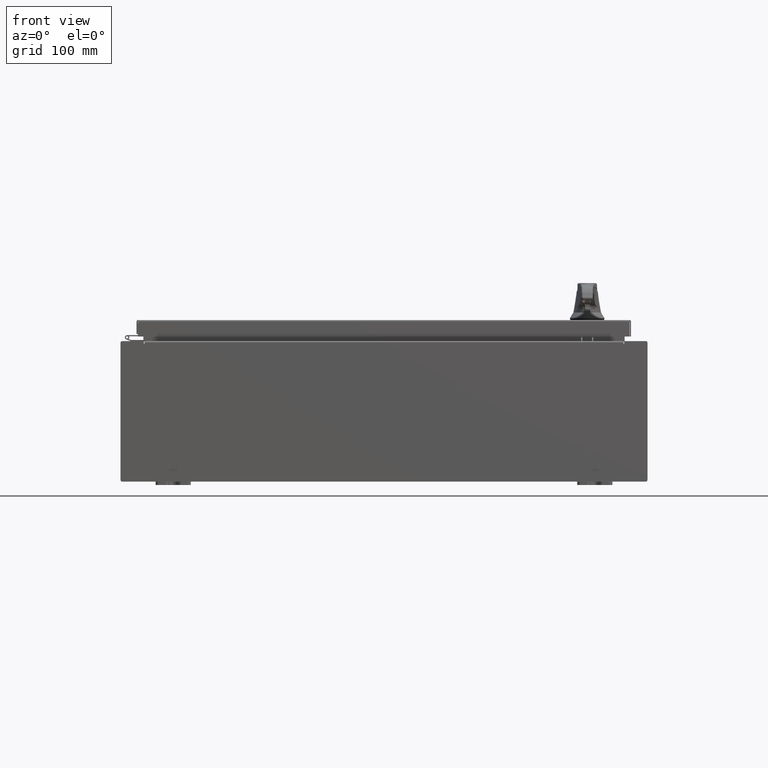
[diagram: clean part render]
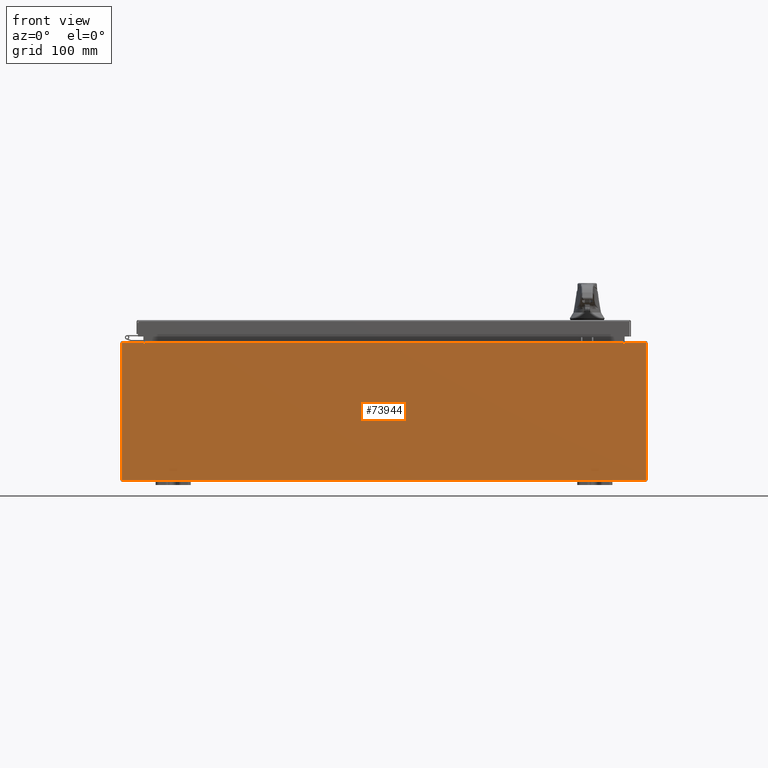
[diagram: same view with one face highlighted and labeled with its STEP entity id]
A machine part, front view. The second image highlights one B-rep face of the part: STEP entity #73944.
In plain terms, the highlighted planar face has unit normal (-0, 1, -0).
Its self-contained STEP definition (entity closure, byte-faithful):
#477 = EDGE_LOOP ( 'NONE', ( #78042, #6673, #98486, #2256, #41566, #60669, #43273, #74959, #100470, #58047, #103509, #43449 ) ) ;
#1920 = LINE ( 'NONE', #87000, #4705 ) ;
#2256 = ORIENTED_EDGE ( 'NONE', *, *, #9070, .T. ) ;
#3968 = AXIS2_PLACEMENT_3D ( 'NONE', #89749, #37236, #98579 ) ;
#4540 = DIRECTION ( 'NONE',  ( 0.0000000000000000000, 0.0000000000000000000, 1.000000000000000000 ) ) ;
#4705 = VECTOR ( 'NONE', #34547, 39.37007874015748100 ) ;
#5042 = CARTESIAN_POINT ( 'NONE',  ( 13.63720000000000400, 0.0000000000000000000, 0.0000000000000000000 ) ) ;
#5684 = EDGE_CURVE ( 'NONE', #36185, #93398, #57331, .T. ) ;
#6132 = EDGE_CURVE ( 'NONE', #82861, #41895, #61418, .T. ) ;
#6527 = CARTESIAN_POINT ( 'NONE',  ( 14.92530000000000200, 0.0000000000000000000, -3.925299999999999600 ) ) ;
#6673 = ORIENTED_EDGE ( 'NONE', *, *, #37110, .F. ) ;
#7060 = CARTESIAN_POINT ( 'NONE',  ( -13.63719999999999600, -0.0000000000000000000, 0.0000000000000000000 ) ) ;
#9070 = EDGE_CURVE ( 'NONE', #45781, #93398, #111776, .T. ) ;
#9541 = VERTEX_POINT ( 'NONE', #9658 ) ;
#9658 = CARTESIAN_POINT ( 'NONE',  ( 13.67455000000000200, 0.0000000000000000000, 3.874949999999999700 ) ) ;
#10154 = DIRECTION ( 'NONE',  ( 1.000000000000000000, 0.0000000000000000000, 0.0000000000000000000 ) ) ;
#13900 = DIRECTION ( 'NONE',  ( 0.0000000000000000000, 0.0000000000000000000, -1.000000000000000000 ) ) ;
#18378 = CARTESIAN_POINT ( 'NONE',  ( -14.92529999999999800, 0.0000000000000000000, -3.925299999999999600 ) ) ;
#18624 = LINE ( 'NONE', #104613, #62511 ) ;
#21254 = VECTOR ( 'NONE', #10154, 39.37007874015748100 ) ;
#21978 = EDGE_CURVE ( 'NONE', #41895, #51693, #56010, .T. ) ;
#24092 = EDGE_CURVE ( 'NONE', #45781, #93572, #60465, .T. ) ;
#24902 = VERTEX_POINT ( 'NONE', #36272 ) ;
#24967 = CARTESIAN_POINT ( 'NONE',  ( 0.0000000000000000000, 0.0000000000000000000, 0.0000000000000000000 ) ) ;
#30324 = VECTOR ( 'NONE', #111103, 39.37007874015748100 ) ;
#33800 = DIRECTION ( 'NONE',  ( 0.0000000000000000000, -0.0000000000000000000, -1.000000000000000000 ) ) ;
#34050 = VECTOR ( 'NONE', #4540, 39.37007874015748100 ) ;
#34547 = DIRECTION ( 'NONE',  ( -4.340572780400004900E-014, 0.0000000000000000000, -1.000000000000000000 ) ) ;
#35004 = CARTESIAN_POINT ( 'NONE',  ( -13.63719999999999600, -0.0000000000000000000, 3.874949999999999700 ) ) ;
#35296 = AXIS2_PLACEMENT_3D ( 'NONE', #24967, #86268, #33800 ) ;
#36185 = VERTEX_POINT ( 'NONE', #110373 ) ;
#36272 = CARTESIAN_POINT ( 'NONE',  ( -14.92529999999999800, 0.0000000000000000000, 3.925299999999999600 ) ) ;
#37110 = EDGE_CURVE ( 'NONE', #93572, #98308, #100562, .T. ) ;
#37236 = DIRECTION ( 'NONE',  ( -0.0000000000000000000, 1.000000000000000000, -0.0000000000000000000 ) ) ;
#39129 = EDGE_CURVE ( 'NONE', #51693, #73546, #94833, .T. ) ;
#41566 = ORIENTED_EDGE ( 'NONE', *, *, #5684, .F. ) ;
#41895 = VERTEX_POINT ( 'NONE', #51498 ) ;
#43076 = CARTESIAN_POINT ( 'NONE',  ( -13.65587499999999600, 0.0000000000000000000, 3.874949999999999700 ) ) ;
#43273 = ORIENTED_EDGE ( 'NONE', *, *, #62770, .F. ) ;
#43449 = ORIENTED_EDGE ( 'NONE', *, *, #86183, .T. ) ;
#45781 = VERTEX_POINT ( 'NONE', #58746 ) ;
#47367 = DIRECTION ( 'NONE',  ( -1.000000000000000000, -0.0000000000000000000, -0.0000000000000000000 ) ) ;
#48223 = VECTOR ( 'NONE', #47367, 39.37007874015748100 ) ;
#49736 = CARTESIAN_POINT ( 'NONE',  ( 13.67455000000000400, 0.0000000000000000000, 3.925299999999999600 ) ) ;
#51498 = CARTESIAN_POINT ( 'NONE',  ( 14.92530000000000200, 0.0000000000000000000, 3.925299999999999600 ) ) ;
#51693 = VERTEX_POINT ( 'NONE', #6527 ) ;
#51896 = DIRECTION ( 'NONE',  ( 0.0000000000000000000, 0.0000000000000000000, -1.000000000000000000 ) ) ;
#53204 = VECTOR ( 'NONE', #13900, 39.37007874015748100 ) ;
#53575 = LINE ( 'NONE', #102285, #30324 ) ;
#55925 = VECTOR ( 'NONE', #60415, 39.37007874015748100 ) ;
#56010 = LINE ( 'NONE', #57554, #53204 ) ;
#57331 = LINE ( 'NONE', #5042, #34050 ) ;
#57554 = CARTESIAN_POINT ( 'NONE',  ( 14.92530000000000200, 0.0000000000000000000, 3.925299999999999600 ) ) ;
#58047 = ORIENTED_EDGE ( 'NONE', *, *, #39129, .T. ) ;
#58746 = CARTESIAN_POINT ( 'NONE',  ( -13.63719999999999600, 1.024442997624098700E-016, 3.912299999999999700 ) ) ;
#59144 = CARTESIAN_POINT ( 'NONE',  ( -14.92529999999999800, 0.0000000000000000000, 3.925299999999999600 ) ) ;
#59476 = DIRECTION ( 'NONE',  ( 0.0000000000000000000, 0.0000000000000000000, -1.000000000000000000 ) ) ;
#60415 = DIRECTION ( 'NONE',  ( 1.000000000000000000, 0.0000000000000000000, 0.0000000000000000000 ) ) ;
#60465 = LINE ( 'NONE', #7060, #92012 ) ;
#60669 = ORIENTED_EDGE ( 'NONE', *, *, #77887, .F. ) ;
#61418 = LINE ( 'NONE', #59144, #55925 ) ;
#62511 = VECTOR ( 'NONE', #113458, 39.37007874015748100 ) ;
#62770 = EDGE_CURVE ( 'NONE', #82861, #9541, #1920, .T. ) ;
#63830 = FACE_OUTER_BOUND ( 'NONE', #477, .T. ) ;
#66599 = DIRECTION ( 'NONE',  ( -0.0000000000000000000, -0.0000000000000000000, 1.000000000000000000 ) ) ;
#67413 = CIRCLE ( 'NONE', #3968, 0.01867499999999949400 ) ;
#71344 = CARTESIAN_POINT ( 'NONE',  ( -13.63719999999999800, 1.024442997624098700E-016, 3.912299999999999700 ) ) ;
#73546 = VERTEX_POINT ( 'NONE', #18378 ) ;
#73944 = ADVANCED_FACE ( 'NONE', ( #63830 ), #77085, .F. ) ;
#74959 = ORIENTED_EDGE ( 'NONE', *, *, #6132, .T. ) ;
#77085 = PLANE ( 'NONE',  #35296 ) ;
#77887 = EDGE_CURVE ( 'NONE', #9541, #36185, #67413, .T. ) ;
#78042 = ORIENTED_EDGE ( 'NONE', *, *, #105125, .F. ) ;
#81064 = LINE ( 'NONE', #83867, #101651 ) ;
#81303 = AXIS2_PLACEMENT_3D ( 'NONE', #43076, #104433, #51896 ) ;
#82861 = VERTEX_POINT ( 'NONE', #49736 ) ;
#83867 = CARTESIAN_POINT ( 'NONE',  ( -14.92529999999999800, 0.0000000000000000000, 3.925299999999999600 ) ) ;
#84863 = CARTESIAN_POINT ( 'NONE',  ( 13.63720000000000400, 0.0000000000000000000, 3.912299999999999700 ) ) ;
#86183 = EDGE_CURVE ( 'NONE', #24902, #104354, #18624, .T. ) ;
#86268 = DIRECTION ( 'NONE',  ( 0.0000000000000000000, -1.000000000000000000, 0.0000000000000000000 ) ) ;
#87000 = CARTESIAN_POINT ( 'NONE',  ( 13.67454999999983300, -0.0000000000000000000, -5.935537951421816200E-013 ) ) ;
#88654 = EDGE_CURVE ( 'NONE', #73546, #24902, #81064, .T. ) ;
#89749 = CARTESIAN_POINT ( 'NONE',  ( 13.65587500000000200, 0.0000000000000000000, 3.874949999999999700 ) ) ;
#92012 = VECTOR ( 'NONE', #59476, 39.37007874015748100 ) ;
#93398 = VERTEX_POINT ( 'NONE', #84863 ) ;
#93572 = VERTEX_POINT ( 'NONE', #35004 ) ;
#94833 = LINE ( 'NONE', #108735, #48223 ) ;
#98308 = VERTEX_POINT ( 'NONE', #111893 ) ;
#98486 = ORIENTED_EDGE ( 'NONE', *, *, #24092, .F. ) ;
#98579 = DIRECTION ( 'NONE',  ( 0.0000000000000000000, 0.0000000000000000000, -1.000000000000000000 ) ) ;
#99050 = CARTESIAN_POINT ( 'NONE',  ( -13.67454999999999500, 0.0000000000000000000, 3.925299999999999600 ) ) ;
#100470 = ORIENTED_EDGE ( 'NONE', *, *, #21978, .T. ) ;
#100562 = CIRCLE ( 'NONE', #81303, 0.01867499999999949400 ) ;
#101651 = VECTOR ( 'NONE', #66599, 39.37007874015748100 ) ;
#102285 = CARTESIAN_POINT ( 'NONE',  ( -13.67454999999999500, -0.0000000000000000000, 0.0000000000000000000 ) ) ;
#103509 = ORIENTED_EDGE ( 'NONE', *, *, #88654, .T. ) ;
#104354 = VERTEX_POINT ( 'NONE', #99050 ) ;
#104433 = DIRECTION ( 'NONE',  ( -0.0000000000000000000, 1.000000000000000000, -0.0000000000000000000 ) ) ;
#104613 = CARTESIAN_POINT ( 'NONE',  ( -14.92529999999999800, 0.0000000000000000000, 3.925299999999999600 ) ) ;
#105125 = EDGE_CURVE ( 'NONE', #98308, #104354, #53575, .T. ) ;
#108735 = CARTESIAN_POINT ( 'NONE',  ( -14.92529999999999800, 0.0000000000000000000, -3.925299999999999600 ) ) ;
#110373 = CARTESIAN_POINT ( 'NONE',  ( 13.63720000000000400, 0.0000000000000000000, 3.874949999999999700 ) ) ;
#111103 = DIRECTION ( 'NONE',  ( 0.0000000000000000000, 0.0000000000000000000, 1.000000000000000000 ) ) ;
#111776 = LINE ( 'NONE', #71344, #21254 ) ;
#111893 = CARTESIAN_POINT ( 'NONE',  ( -13.67454999999999500, 0.0000000000000000000, 3.874949999999999700 ) ) ;
#113458 = DIRECTION ( 'NONE',  ( 1.000000000000000000, 0.0000000000000000000, 0.0000000000000000000 ) ) ;